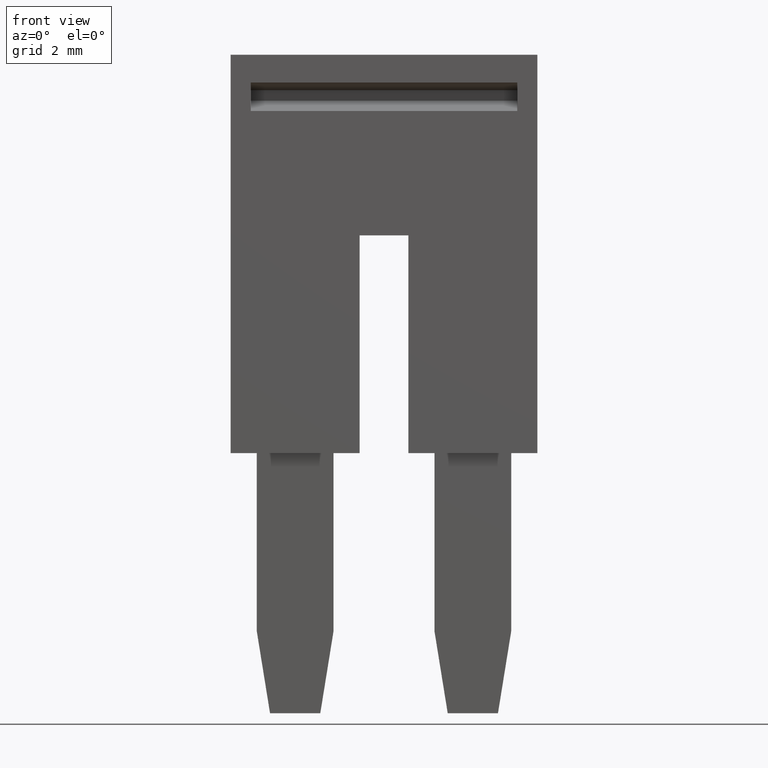
[diagram: clean part render]
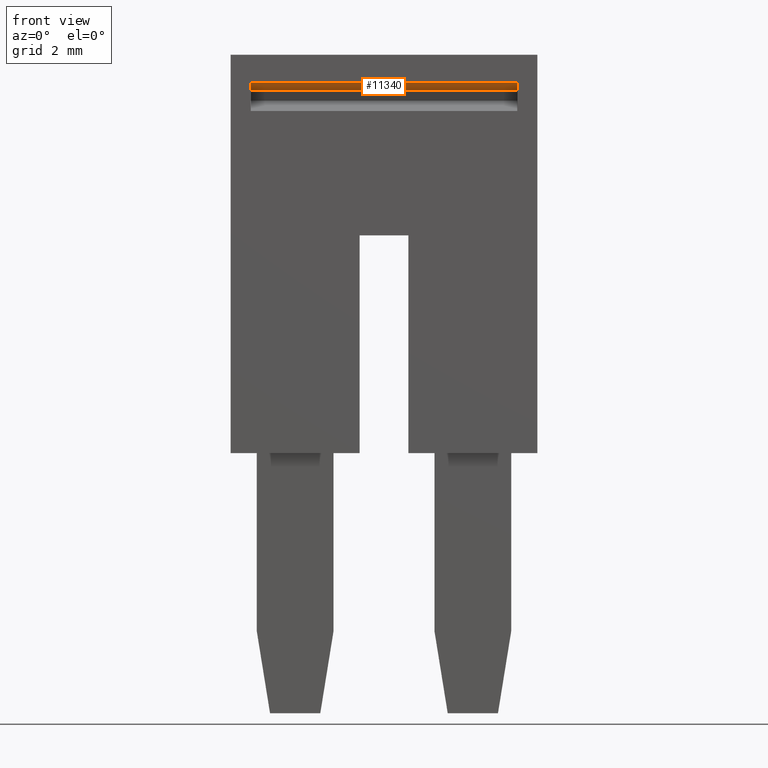
[diagram: same view with one face highlighted and labeled with its STEP entity id]
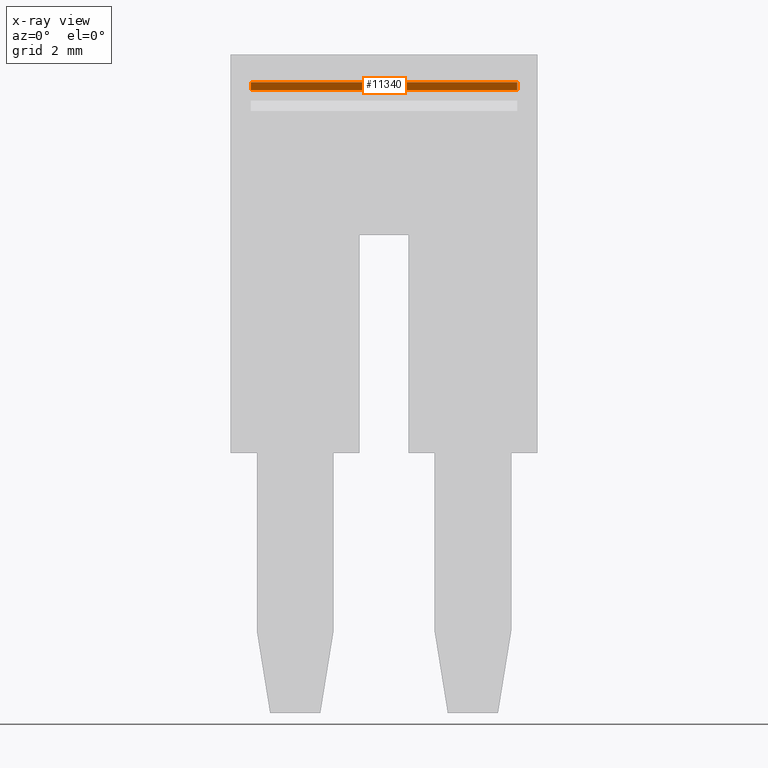
[diagram: x-ray of the same camera — body ghosted, the highlighted face saturated]
A machine part, front view. The second image highlights one B-rep face of the part: STEP entity #11340.
The next image is the same camera in x-ray: the body ghosted, the highlighted face saturated — about 0% of this face is hidden behind the body in this view.
In plain terms, the highlighted planar face has unit normal (0, 0.2588, 0.9659).
Its self-contained STEP definition (entity closure, byte-faithful):
#200=CARTESIAN_POINT('',(2.60716722168537,-10.1410254037881,
60.0099999999988));
#210=VERTEX_POINT('',#200);
#240=CARTESIAN_POINT('',(2.60716722168537,-10.1410254037881,47.074984));
#250=DIRECTION('',(0.,-6.93889390390723E-17,1.));
#260=VECTOR('',#250,1.);
#270=LINE('',#240,#260);
#280=CARTESIAN_POINT('',(2.60716722168537,-10.1410254037881,
50.7099999999988));
#290=VERTEX_POINT('',#280);
#300=EDGE_CURVE('',#290,#210,#270,.T.);
#10750=CARTESIAN_POINT('',(3.60716722168538,-10.4089745962192,
60.0099999999988));
#10760=VERTEX_POINT('',#10750);
#10930=CARTESIAN_POINT('',(3.60716722168538,-10.4089745962192,
50.7099999999988));
#10940=VERTEX_POINT('',#10930);
#10970=CARTESIAN_POINT('',(3.60716722168538,-10.4089745962192,
63.6950159999975));
#10980=DIRECTION('',(-2.40741243048404E-33,-6.93889390390723E-17,1.));
#10990=VECTOR('',#10980,1.);
#11000=LINE('',#10970,#10990);
#11010=EDGE_CURVE('',#10940,#10760,#11000,.T.);
#11130=CARTESIAN_POINT('',(3.10716722168538,-10.2750000000037,
92.3899975999988));
#11140=DIRECTION('',(0.258819045102519,0.965925826289069,
6.70245682766377E-17));
#11150=DIRECTION('',(0.965925826289069,-0.258819045102519,
-1.79591789427696E-17));
#11160=AXIS2_PLACEMENT_3D('',#11130,#11140,#11150);
#11170=PLANE('',#11160);
#11180=ORIENTED_EDGE('',*,*,#300,.F.);
#11190=CARTESIAN_POINT('',(2.60716722168538,-10.1410254037881,
60.0099999999988));
#11200=DIRECTION('',(-0.965925826289069,0.258819045102519,
1.79591789427696E-17));
#11210=VECTOR('',#11200,1.);
#11220=LINE('',#11190,#11210);
#11230=EDGE_CURVE('',#10760,#210,#11220,.T.);
#11240=ORIENTED_EDGE('',*,*,#11230,.T.);
#11250=ORIENTED_EDGE('',*,*,#11010,.T.);
#11260=CARTESIAN_POINT('',(2.60716722168538,-10.1410254037881,
50.7099999999988));
#11270=DIRECTION('',(0.965925826289069,-0.258819045102519,
-1.79591789427696E-17));
#11280=VECTOR('',#11270,1.);
#11290=LINE('',#11260,#11280);
#11300=EDGE_CURVE('',#290,#10940,#11290,.T.);
#11310=ORIENTED_EDGE('',*,*,#11300,.T.);
#11320=EDGE_LOOP('',(#11310,#11250,#11240,#11180));
#11330=FACE_OUTER_BOUND('',#11320,.T.);
#11340=ADVANCED_FACE('',(#11330),#11170,.F.);